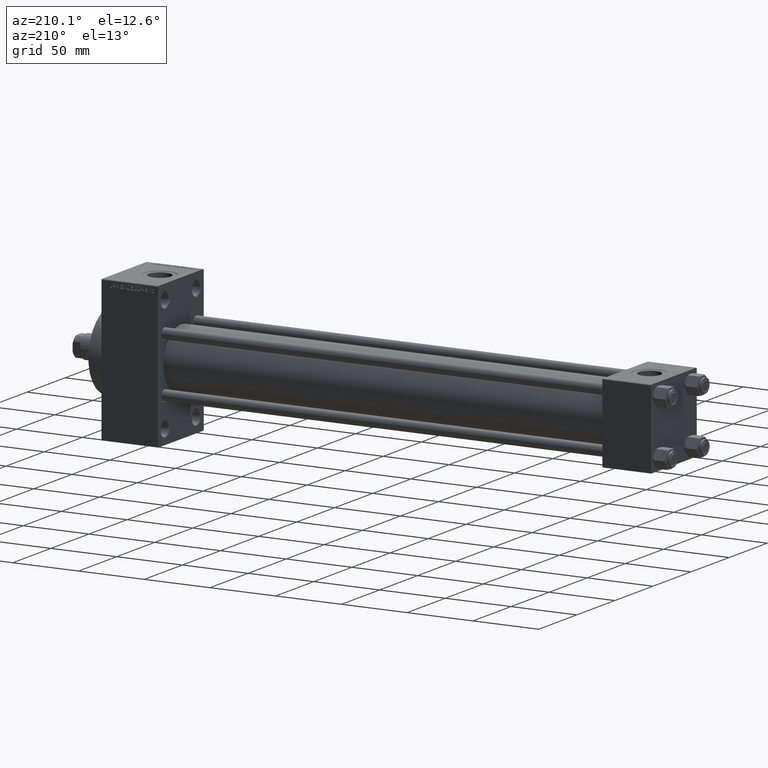
[diagram: clean part render]
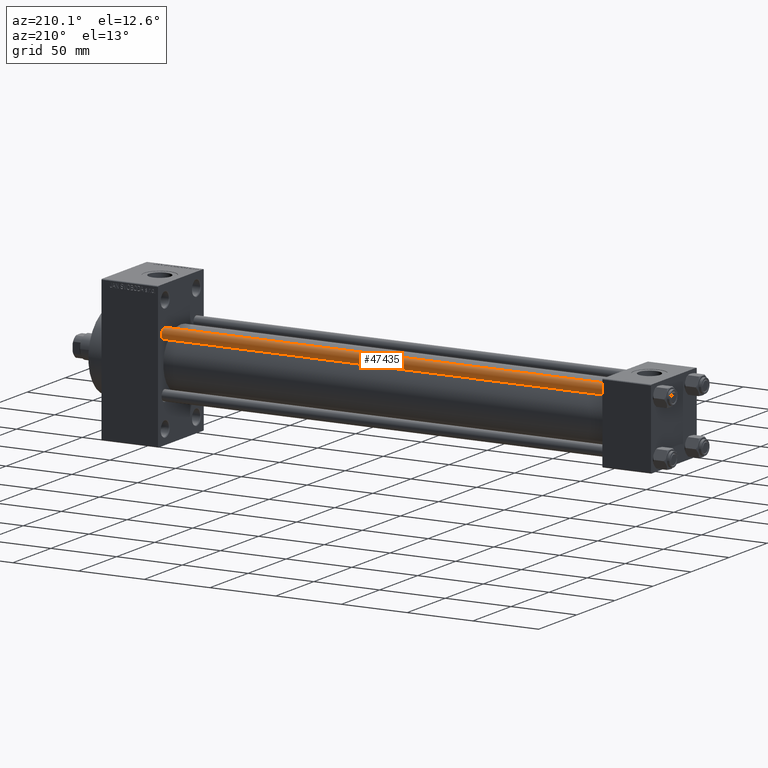
[diagram: same view with one face highlighted and labeled with its STEP entity id]
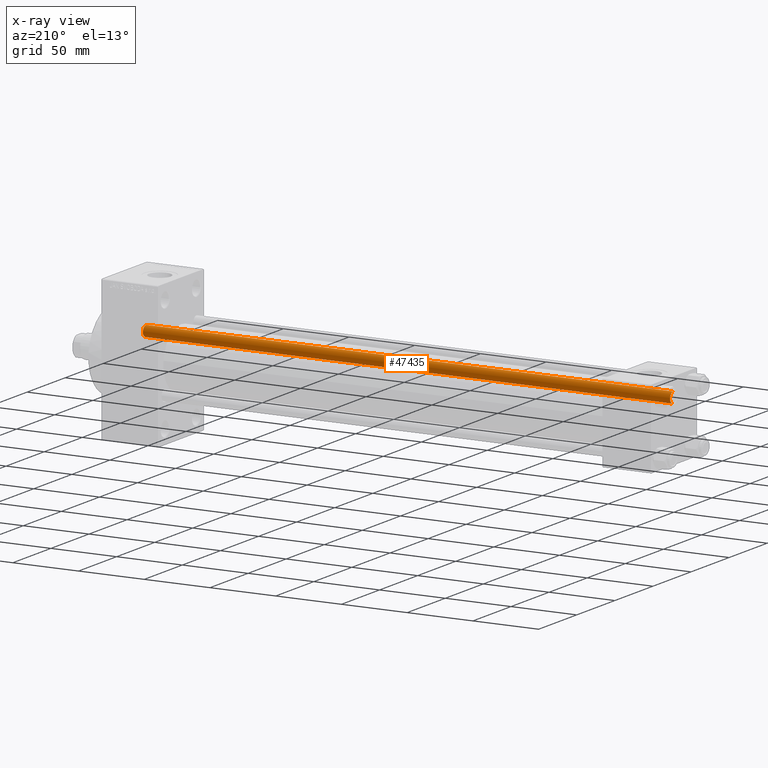
[diagram: x-ray of the same camera — body ghosted, the highlighted face saturated]
A machine part, auxiliary view. The second image highlights one B-rep face of the part: STEP entity #47435.
The next image is the same camera in x-ray: the body ghosted, the highlighted face saturated — about 0% of this face is hidden behind the body in this view.
In plain terms, the highlighted cylindrical surface (edge-blend (fillet) strip) has radius 4 mm, axis along (-1, -0, 0).
Its self-contained STEP definition (entity closure, byte-faithful):
#2070 = LINE ( 'NONE', #13121, #14199 ) ;
#2638 = CYLINDRICAL_SURFACE ( 'NONE', #40234, 4.000000000000000000 ) ;
#3083 = CARTESIAN_POINT ( 'NONE',  ( -4.000000000000000000, 0.000000000000000000, 401.5000000000000568 ) ) ;
#5232 = CIRCLE ( 'NONE', #36633, 4.000000000000000000 ) ;
#6677 = CARTESIAN_POINT ( 'NONE',  ( 4.000000000000000000, 4.898587196589412829E-16, 401.5000000000000568 ) ) ;
#7193 = CARTESIAN_POINT ( 'NONE',  ( 0.000000000000000000, 0.000000000000000000, 402.0000000000000000 ) ) ;
#7601 = VECTOR ( 'NONE', #28827, 1000.000000000000000 ) ;
#8857 = AXIS2_PLACEMENT_3D ( 'NONE', #44199, #11346, #22130 ) ;
#10002 = DIRECTION ( 'NONE',  ( -0.000000000000000000, -0.000000000000000000, -1.000000000000000000 ) ) ;
#11346 = DIRECTION ( 'NONE',  ( 0.000000000000000000, 0.000000000000000000, -1.000000000000000000 ) ) ;
#13008 = DIRECTION ( 'NONE',  ( 1.000000000000000000, 0.000000000000000000, 0.000000000000000000 ) ) ;
#13121 = CARTESIAN_POINT ( 'NONE',  ( -4.000000000000000000, 0.000000000000000000, 402.0000000000000000 ) ) ;
#13446 = DIRECTION ( 'NONE',  ( -1.000000000000000000, 0.000000000000000000, 0.000000000000000000 ) ) ;
#13724 = CARTESIAN_POINT ( 'NONE',  ( 0.000000000000000000, 0.000000000000000000, 0.5000000000000004441 ) ) ;
#14199 = VECTOR ( 'NONE', #10002, 1000.000000000000000 ) ;
#14899 = EDGE_CURVE ( 'NONE', #39496, #39029, #32897, .T. ) ;
#22130 = DIRECTION ( 'NONE',  ( 1.000000000000000000, 0.000000000000000000, 0.000000000000000000 ) ) ;
#23574 = ORIENTED_EDGE ( 'NONE', *, *, #46910, .F. ) ;
#24939 = DIRECTION ( 'NONE',  ( -0.000000000000000000, -0.000000000000000000, -1.000000000000000000 ) ) ;
#27675 = EDGE_CURVE ( 'NONE', #28563, #39496, #46405, .T. ) ;
#27713 = CARTESIAN_POINT ( 'NONE',  ( 4.000000000000000000, 4.898587196589412829E-16, 0.5000000000000004441 ) ) ;
#28520 = VERTEX_POINT ( 'NONE', #45607 ) ;
#28563 = VERTEX_POINT ( 'NONE', #3083 ) ;
#28827 = DIRECTION ( 'NONE',  ( -0.000000000000000000, -0.000000000000000000, -1.000000000000000000 ) ) ;
#30957 = DIRECTION ( 'NONE',  ( -0.000000000000000000, -0.000000000000000000, 1.000000000000000000 ) ) ;
#32897 = LINE ( 'NONE', #39862, #7601 ) ;
#34461 = ORIENTED_EDGE ( 'NONE', *, *, #14899, .T. ) ;
#34835 = ORIENTED_EDGE ( 'NONE', *, *, #37397, .T. ) ;
#36633 = AXIS2_PLACEMENT_3D ( 'NONE', #13724, #30957, #13008 ) ;
#37397 = EDGE_CURVE ( 'NONE', #39029, #28520, #5232, .T. ) ;
#37919 = ORIENTED_EDGE ( 'NONE', *, *, #27675, .T. ) ;
#39029 = VERTEX_POINT ( 'NONE', #27713 ) ;
#39496 = VERTEX_POINT ( 'NONE', #6677 ) ;
#39862 = CARTESIAN_POINT ( 'NONE',  ( 4.000000000000000000, 4.898587196589412829E-16, 402.0000000000000000 ) ) ;
#40234 = AXIS2_PLACEMENT_3D ( 'NONE', #7193, #24939, #13446 ) ;
#42126 = EDGE_LOOP ( 'NONE', ( #37919, #34461, #34835, #23574 ) ) ;
#43645 = FACE_OUTER_BOUND ( 'NONE', #42126, .T. ) ;
#44199 = CARTESIAN_POINT ( 'NONE',  ( 0.000000000000000000, 0.000000000000000000, 401.5000000000000568 ) ) ;
#45607 = CARTESIAN_POINT ( 'NONE',  ( -4.000000000000000000, 0.000000000000000000, 0.5000000000000004441 ) ) ;
#46405 = CIRCLE ( 'NONE', #8857, 4.000000000000000000 ) ;
#46910 = EDGE_CURVE ( 'NONE', #28563, #28520, #2070, .T. ) ;
#47435 = ADVANCED_FACE ( 'NONE', ( #43645 ), #2638, .T. ) ;